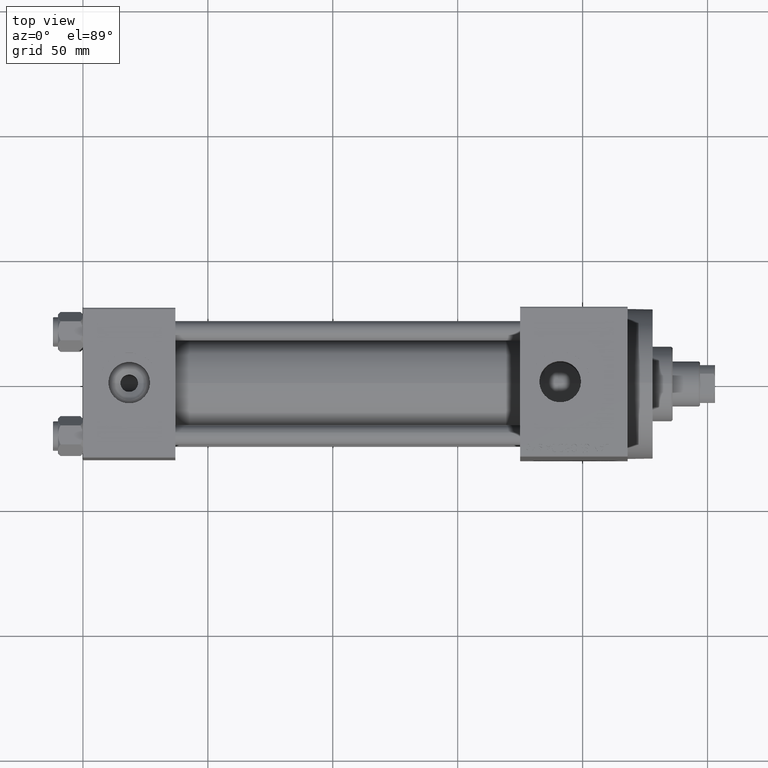
[diagram: clean part render]
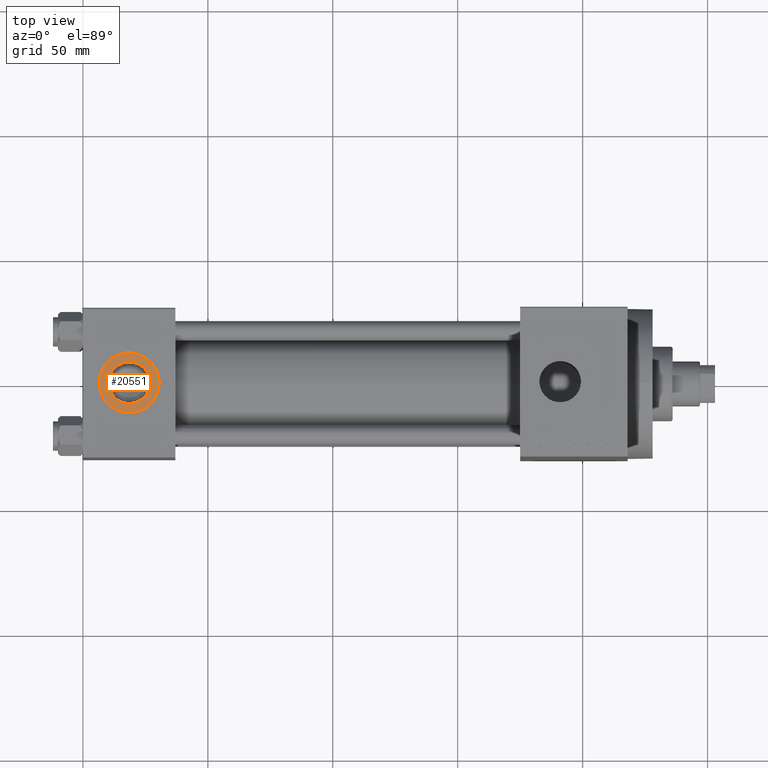
[diagram: same view with one face highlighted and labeled with its STEP entity id]
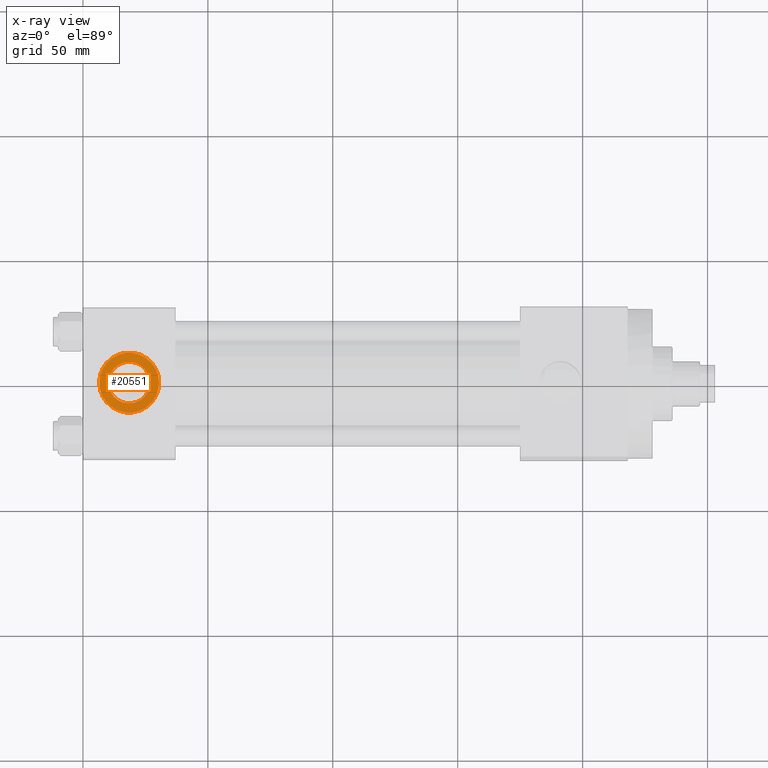
[diagram: x-ray of the same camera — body ghosted, the highlighted face saturated]
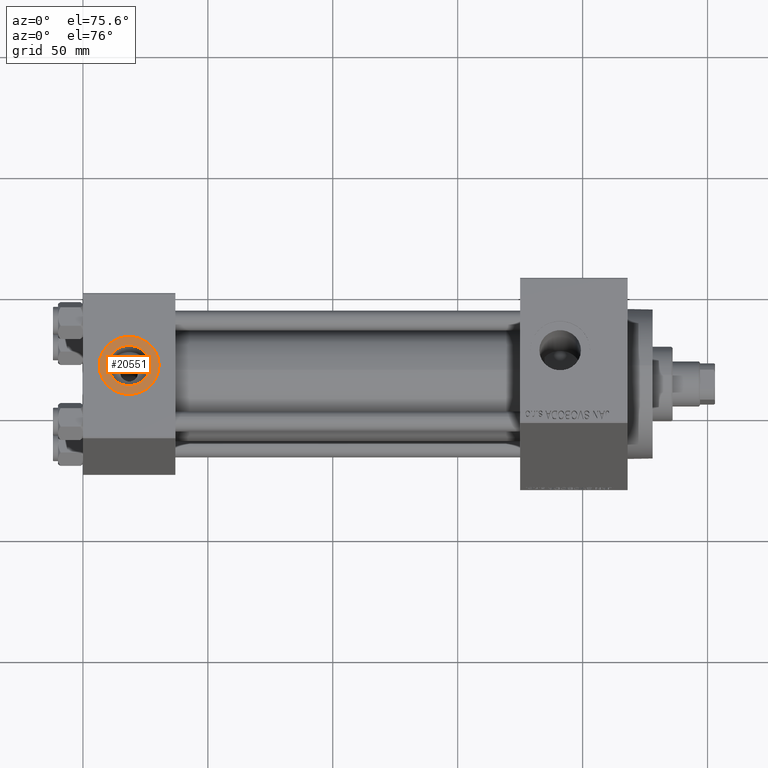
[diagram: same view with one face highlighted and labeled with its STEP entity id]
A machine part, top view. The second image highlights one B-rep face of the part: STEP entity #20551.
The next image is the same camera in x-ray: the body ghosted, the highlighted face saturated — about 0% of this face is hidden behind the body in this view.
A second angle (auxiliary view) of the same face is appended — the face is thin or edge-on in the first view.
In plain terms, the highlighted planar face has unit normal (0, 0, 1).
Its self-contained STEP definition (entity closure, byte-faithful):
#1301 = ORIENTED_EDGE ( 'NONE', *, *, #41602, .F. ) ;
#2163 = ORIENTED_EDGE ( 'NONE', *, *, #9204, .T. ) ;
#2709 = ORIENTED_EDGE ( 'NONE', *, *, #22378, .F. ) ;
#4048 = CARTESIAN_POINT ( 'NONE',  ( 30.50000000000000000, -3.469446951953614978E-15, 29.79999999999999716 ) ) ;
#4082 = CARTESIAN_POINT ( 'NONE',  ( 18.50000000000000000, -3.469446951953614978E-15, 29.79999999999999716 ) ) ;
#4635 = VERTEX_POINT ( 'NONE', #4048 ) ;
#4857 = CARTESIAN_POINT ( 'NONE',  ( 18.50000000000000000, -3.469446951953614978E-15, 29.79999999999999716 ) ) ;
#6119 = EDGE_LOOP ( 'NONE', ( #2163, #44929 ) ) ;
#6386 = VERTEX_POINT ( 'NONE', #46424 ) ;
#7682 = PLANE ( 'NONE',  #17515 ) ;
#8244 = VERTEX_POINT ( 'NONE', #21945 ) ;
#8938 = CARTESIAN_POINT ( 'NONE',  ( 18.50000000000000000, -3.469446951953614978E-15, 29.79999999999999716 ) ) ;
#9204 = EDGE_CURVE ( 'NONE', #4635, #8244, #42558, .T. ) ;
#10314 = CARTESIAN_POINT ( 'NONE',  ( 18.50000000000000000, -3.469446951953614978E-15, 29.79999999999999716 ) ) ;
#10671 = AXIS2_PLACEMENT_3D ( 'NONE', #8938, #17307, #46574 ) ;
#11150 = VERTEX_POINT ( 'NONE', #25195 ) ;
#12690 = EDGE_LOOP ( 'NONE', ( #2709, #1301 ) ) ;
#12951 = CIRCLE ( 'NONE', #10671, 8.330000000000000071 ) ;
#14359 = DIRECTION ( 'NONE',  ( 1.000000000000000000, 0.000000000000000000, 0.000000000000000000 ) ) ;
#15251 = CIRCLE ( 'NONE', #33654, 12.00000000000000000 ) ;
#15438 = CIRCLE ( 'NONE', #39219, 8.330000000000000071 ) ;
#16351 = DIRECTION ( 'NONE',  ( 1.000000000000000000, 0.000000000000000000, 0.000000000000000000 ) ) ;
#17307 = DIRECTION ( 'NONE',  ( 0.000000000000000000, 0.000000000000000000, 1.000000000000000000 ) ) ;
#17515 = AXIS2_PLACEMENT_3D ( 'NONE', #4082, #18711, #33353 ) ;
#18711 = DIRECTION ( 'NONE',  ( 0.000000000000000000, 0.000000000000000000, 1.000000000000000000 ) ) ;
#20551 = ADVANCED_FACE ( 'NONE', ( #29506, #40540 ), #7682, .T. ) ;
#21945 = CARTESIAN_POINT ( 'NONE',  ( 6.499999999999997335, -1.999870792976790833E-15, 29.79999999999999716 ) ) ;
#22289 = EDGE_CURVE ( 'NONE', #8244, #4635, #15251, .T. ) ;
#22378 = EDGE_CURVE ( 'NONE', #11150, #6386, #12951, .T. ) ;
#23942 = DIRECTION ( 'NONE',  ( 0.000000000000000000, 0.000000000000000000, 1.000000000000000000 ) ) ;
#24927 = DIRECTION ( 'NONE',  ( 0.000000000000000000, 0.000000000000000000, 1.000000000000000000 ) ) ;
#25195 = CARTESIAN_POINT ( 'NONE',  ( 26.82999999999999829, -3.469446951953614978E-15, 29.79999999999999716 ) ) ;
#29506 = FACE_BOUND ( 'NONE', #12690, .T. ) ;
#33353 = DIRECTION ( 'NONE',  ( 1.000000000000000000, 0.000000000000000000, -0.000000000000000000 ) ) ;
#33365 = AXIS2_PLACEMENT_3D ( 'NONE', #35456, #23942, #35694 ) ;
#33654 = AXIS2_PLACEMENT_3D ( 'NONE', #4857, #35070, #16351 ) ;
#35070 = DIRECTION ( 'NONE',  ( 0.000000000000000000, 0.000000000000000000, 1.000000000000000000 ) ) ;
#35456 = CARTESIAN_POINT ( 'NONE',  ( 18.50000000000000000, -3.469446951953614978E-15, 29.79999999999999716 ) ) ;
#35694 = DIRECTION ( 'NONE',  ( 1.000000000000000000, 0.000000000000000000, 0.000000000000000000 ) ) ;
#39219 = AXIS2_PLACEMENT_3D ( 'NONE', #10314, #24927, #14359 ) ;
#40540 = FACE_OUTER_BOUND ( 'NONE', #6119, .T. ) ;
#41602 = EDGE_CURVE ( 'NONE', #6386, #11150, #15438, .T. ) ;
#42558 = CIRCLE ( 'NONE', #33365, 12.00000000000000000 ) ;
#44929 = ORIENTED_EDGE ( 'NONE', *, *, #22289, .T. ) ;
#46424 = CARTESIAN_POINT ( 'NONE',  ( 10.16999999999999638, -2.449316168263869821E-15, 29.79999999999999716 ) ) ;
#46574 = DIRECTION ( 'NONE',  ( 1.000000000000000000, 0.000000000000000000, 0.000000000000000000 ) ) ;